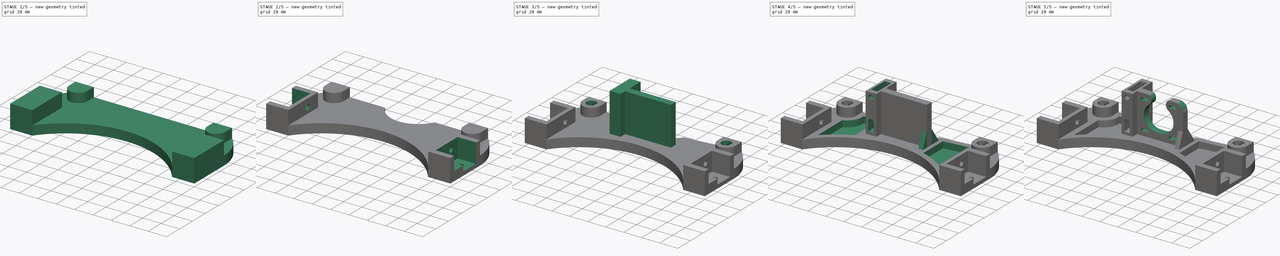
[diagram: build sequence overview — one tinted view per stage of 5, left to right]
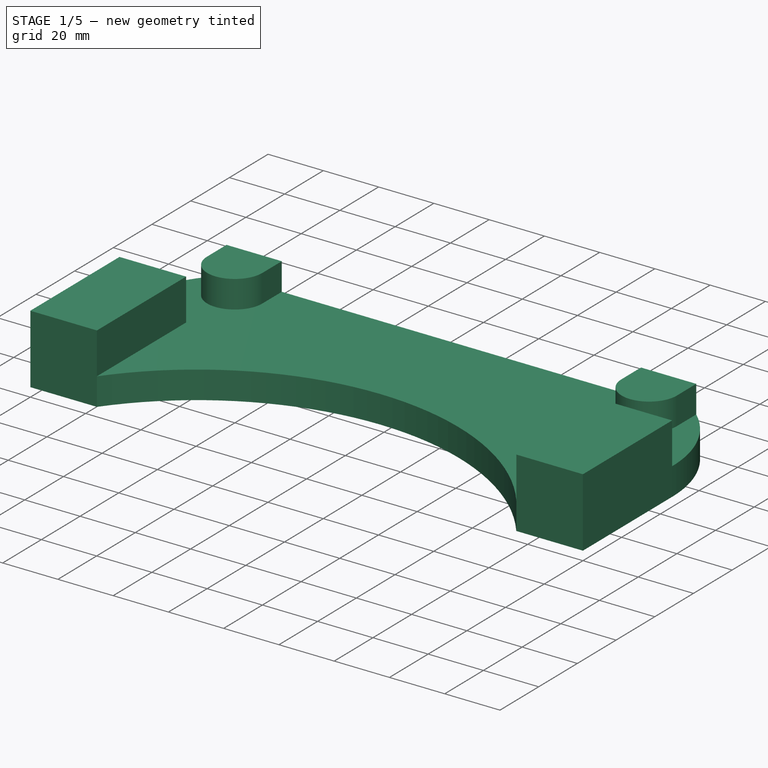
[diagram: stage 1 of 5 — iso view after this stage's code; geometry added in this stage tinted green]
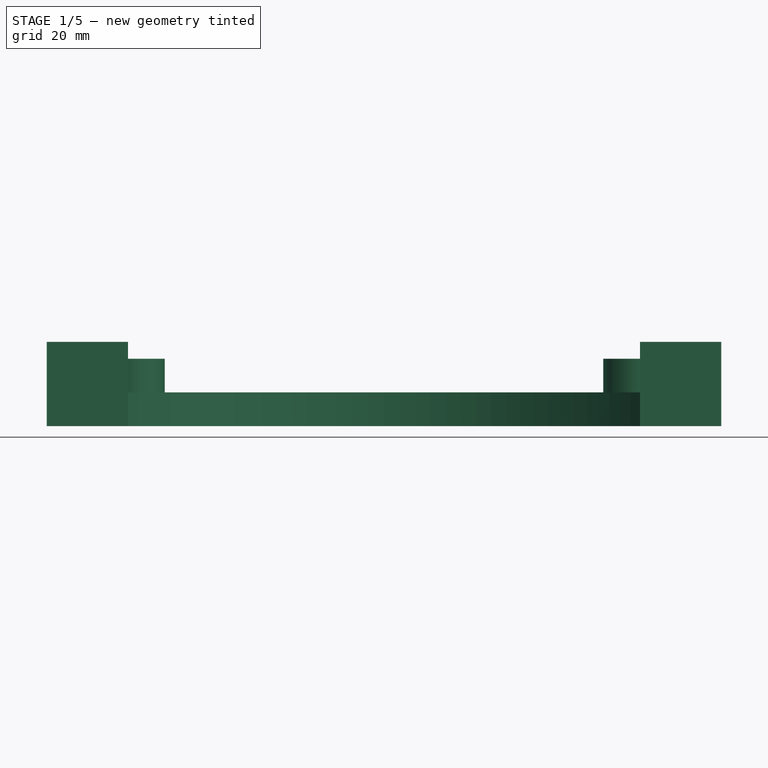
[diagram: stage 1 of 5 — front view after this stage's code; geometry added in this stage tinted green]
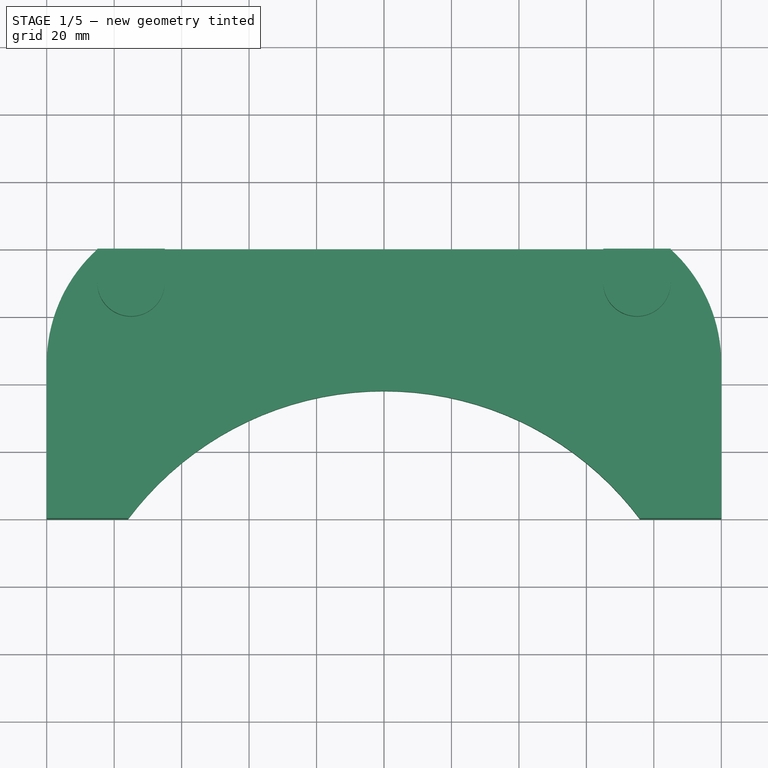
[diagram: stage 1 of 5 — top view after this stage's code; geometry added in this stage tinted green]
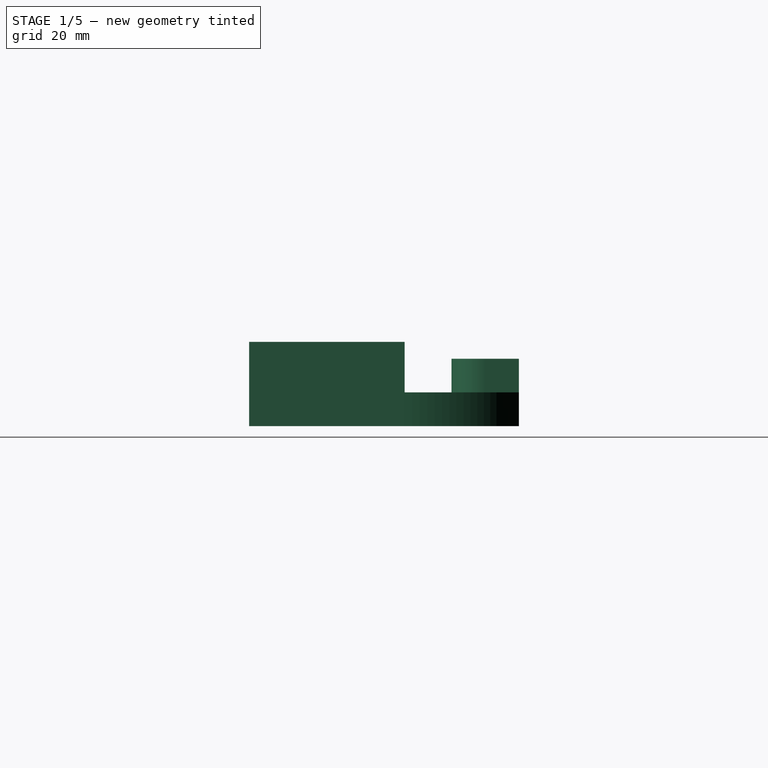
[diagram: stage 1 of 5 — right view after this stage's code; geometry added in this stage tinted green]
FCSTD DOCUMENT
Label: Y_Motor
objects: Sketcher::SketchObject×22, PartDesign::Pocket×19, PartDesign::Mirrored×7, PartDesign::Pad×3, PartDesign::LinearPattern×1, PartDesign::MultiTransform×1, PartDesign::Fillet×1, Part::Feature×1
note: 77 computed .brp shape members not serialized (recipe doc carries the construction recipe); baked Part::Feature solids carry a one-line shape summary decoded from their .brp

FEATURE [Sketcher::SketchObject] Sketch
  sketch-geometry (5):
    g0: LineSegment StartX=-100 StartY=0 StartZ=0 EndX=100 EndY=0 EndZ=0
    g1: LineSegment StartX=100 StartY=0 StartZ=0 EndX=100 EndY=80 EndZ=0
    g2: LineSegment StartX=100 StartY=80 StartZ=0 EndX=-100 EndY=80 EndZ=0
    g3: LineSegment StartX=-100 StartY=80 StartZ=0 EndX=-100 EndY=0 EndZ=0
    g4: GeomPoint [constr] X=0 Y=0 Z=0
  constraints (12):
    c: Coincident(g0,g1)
    c: Coincident(g1,g2)
    c: Coincident(g2,g3)
    c: Coincident(g3,g0)
    c: Horizontal(g0)
    c: Horizontal(g2)
    c: Vertical(g1)
    c: Vertical(g3)
    c: DistanceX(g0) = 200
    c: DistanceY(g1) = 80
    c: Symmetric(g0,g0,g4)
    c: Coincident(g4,g-1)
FEATURE [PartDesign::Pad] Pad
  Length = 25
  Length2 = 100
  Sketch = -> Sketch
  Type = 0
FEATURE [Sketcher::SketchObject] Sketch001
  ExternalGeometry = -> [Pad]
  Placement = pos=(0,0,25) rot=(0,0,1;0rad)
  Support = -> Pad [Face6]
  sketch-geometry (3):
    g0: ArcOfCircle CenterX=0 CenterY=-56.8001 CenterZ=0 NormalX=0 NormalY=0 NormalZ=1 Radius=94.8001 StartAngle=0.642447 EndAngle=2.49915
    g1: LineSegment StartX=-75.9 StartY=0 StartZ=0 EndX=75.9 EndY=0 EndZ=0
    g2: LineSegment [constr] StartX=0 StartY=38 StartZ=0 EndX=0 EndY=0 EndZ=0
  constraints (10):
    c: PointOnObject(g0,g-2)
    c: Coincident(g1,g0)
    c: Coincident(g1,g0)
    c: Horizontal(g1)
    c: PointOnObject(g0,g-3)
    c: PointOnObject(g2,g0)
    c: Coincident(g2,g-1)
    c: Vertical(g2)
    c: DistanceY(g2) = -38
    c: DistanceX(g0,g-3) = -24.1
FEATURE [PartDesign::Pocket] Pocket
  Length = 5
  Sketch = -> Sketch001
  Type = 1
FEATURE [Sketcher::SketchObject] Sketch002
  ExternalGeometry = -> [Pocket]
  Placement = pos=(0,0,25) rot=(0,0,1;0rad)
  Support = -> Pocket [Face5]
  sketch-geometry (3):
    g0: ArcOfCircle CenterX=54.1931 CenterY=46.1 CenterZ=0 NormalX=0 NormalY=0 NormalZ=1 Radius=45.8069 StartAngle=6.28318 EndAngle=7.11635
    g1: LineSegment StartX=85 StartY=80 StartZ=0 EndX=100 EndY=80 EndZ=0
    g2: LineSegment StartX=100 StartY=80 StartZ=0 EndX=100 EndY=46.1 EndZ=0
  constraints (9):
    c: Coincident(g0,g1)
    c: Coincident(g1,g2)
    c: Coincident(g2,g0)
    c: Vertical(g2)
    c: Tangent(g2,g0)
    c: Horizontal(g1)
    c: DistanceX(g1) = 15
    c: Coincident(g1,g-3)
    c: DistanceY(g0,g-3) = -46.1
FEATURE [PartDesign::Pocket] Pocket001
  Length = 25
  Sketch = -> Sketch002
  Type = 0
FEATURE [PartDesign::Mirrored] Mirrored
  Originals = -> [Pocket001]
  StdMirrorPlane = YZ
FEATURE [Sketcher::SketchObject] Sketch004
  ExternalGeometry = -> [Mirrored]
  Placement = pos=(0,0,25) rot=(0,0,1;0rad)
  Support = -> Mirrored [Face4]
  sketch-geometry (16):
    g0: LineSegment StartX=-101 StartY=81 StartZ=0 EndX=-85 EndY=81 EndZ=0
    g1: LineSegment StartX=101 StartY=81 StartZ=0 EndX=101 EndY=46.1 EndZ=0
    g2: LineSegment StartX=75.9 StartY=0 StartZ=0 EndX=-75.9 EndY=0 EndZ=0
    g3: LineSegment StartX=-101 StartY=46.1 StartZ=0 EndX=-101 EndY=81 EndZ=0
    g4: LineSegment StartX=-101 StartY=46.1 StartZ=0 EndX=-75.9 EndY=46.1 EndZ=0
    g5: LineSegment StartX=-75.9 StartY=46.1 StartZ=0 EndX=-75.9 EndY=0 EndZ=0
    g6: LineSegment StartX=101 StartY=46.1 StartZ=0 EndX=75.9 EndY=46.1 EndZ=0
    g7: LineSegment StartX=75.9 StartY=46.1 StartZ=0 EndX=75.9 EndY=0 EndZ=0
    g8: LineSegment StartX=-85 StartY=81 StartZ=0 EndX=-85 EndY=70 EndZ=0
    g9: ArcOfCircle CenterX=-75 CenterY=70 CenterZ=0 NormalX=0 NormalY=0 NormalZ=1 Radius=10 StartAngle=3.14159 EndAngle=6.28319
    g10: LineSegment StartX=-65 StartY=70 StartZ=0 EndX=-65 EndY=81 EndZ=0
    g11: LineSegment StartX=65 StartY=81 StartZ=0 EndX=65 EndY=70 EndZ=0
    g12: ArcOfCircle CenterX=75 CenterY=70 CenterZ=0 NormalX=0 NormalY=0 NormalZ=1 Radius=10 StartAngle=3.14159 EndAngle=6.28319
    g13: LineSegment StartX=85 StartY=70 StartZ=0 EndX=85 EndY=81 EndZ=0
    g14: LineSegment StartX=85 StartY=81 StartZ=0 EndX=101 EndY=81 EndZ=0
    g15: LineSegment StartX=-65 StartY=81 StartZ=0 EndX=65 EndY=81 EndZ=0
  constraints (43):
    c: Coincident(g14,g1)
    c: Coincident(g3,g0)
    c: Horizontal(g0)
    c: Horizontal(g2)
    c: Vertical(g1)
    c: Vertical(g3)
    c: Coincident(g4,g5)
    c: Horizontal(g4)
    c: Vertical(g5)
    c: Coincident(g6,g7)
    c: Horizontal(g6)
    c: Vertical(g7)
    c: Coincident(g2,g5)
    c: Coincident(g3,g4)
    c: Coincident(g1,g6)
    c: Coincident(g2,g7)
    c: Equal(g5,g7)
    c: Symmetric(g2,g2,g-2)
    c: Equal(g4,g6)
    c: Vertical(g8)
    c: Tangent(g8,g9)
    c: Tangent(g9,g10)
    c: Vertical(g10)
    c: Vertical(g11)
    c: Tangent(g11,g12)
    c: Tangent(g12,g13)
    c: Vertical(g13)
    c: Coincident(g15,g11)
    c: Coincident(g14,g13)
    c: Tangent(g0,g14)
    c: Coincident(g0,g8)
    c: Coincident(g15,g10)
    c: Tangent(g0,g15)
    c: Equal(g0,g14)
    c: Equal(g11,g10)
    c: Equal(g12,g9)
    c: DistanceY(g-4,g8) = -10
    c: DistanceY(g5) = -46.1
    c: Radius(g9) = 10
    c: Coincident(g2,g-3)
    c: PointOnObject(g-4,g8)
    c: DistanceX(g3,g-3) = 1
    c: DistanceY(g0,g-4) = -1
FEATURE [PartDesign::Pocket] Pocket002
  Length = 15
  Sketch = -> Sketch004
  Type = 0
FEATURE [Sketcher::SketchObject] Sketch006
  ExternalGeometry = -> [Pocket002]
  Placement = pos=(0,0,25) rot=(0,0,1;0rad)
  Support = -> Pocket002 [Face17]
  sketch-geometry (4):
    g0: LineSegment StartX=-86 StartY=81 StartZ=0 EndX=86 EndY=81 EndZ=0
    g1: LineSegment StartX=86 StartY=81 StartZ=0 EndX=86 EndY=59 EndZ=0
    g2: LineSegment StartX=86 StartY=59 StartZ=0 EndX=-86 EndY=59 EndZ=0
    g3: LineSegment StartX=-86 StartY=59 StartZ=0 EndX=-86 EndY=81 EndZ=0
  constraints (12):
    c: Coincident(g0,g1)
    c: Coincident(g1,g2)
    c: Coincident(g2,g3)
    c: Coincident(g3,g0)
    c: Horizontal(g0)
    c: Horizontal(g2)
    c: Vertical(g1)
    c: Vertical(g3)
    c: Symmetric(g0,g0,g-2)
    c: DistanceY(g0,g-3) = -1
    c: DistanceX(g0,g-3) = 1
    c: DistanceY(g1) = -22
FEATURE [PartDesign::Pocket] Pocket003
  Length = 5
  Sketch = -> Sketch006
  Type = 0
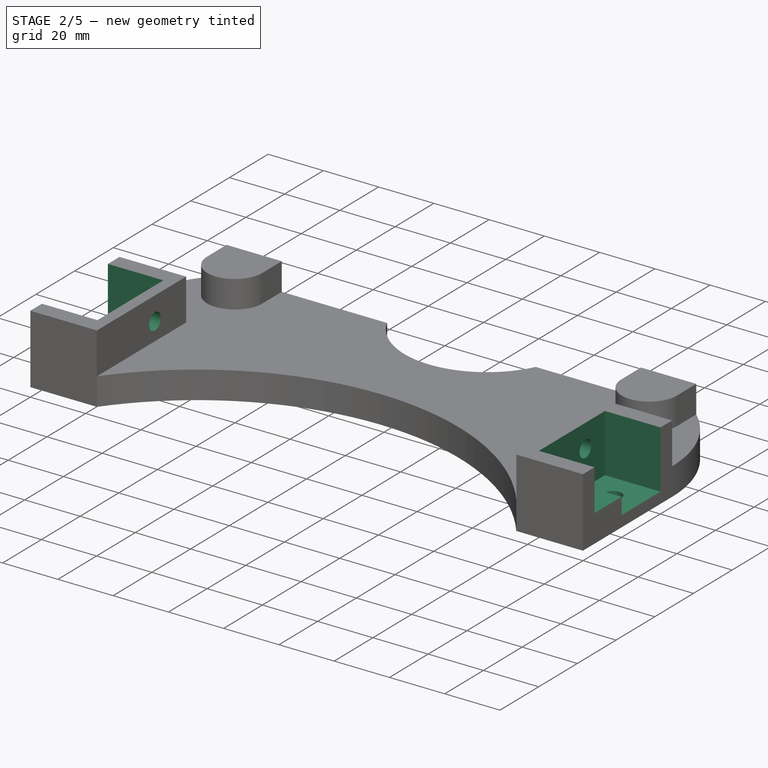
[diagram: stage 2 of 5 — iso view after this stage's code; geometry added in this stage tinted green]
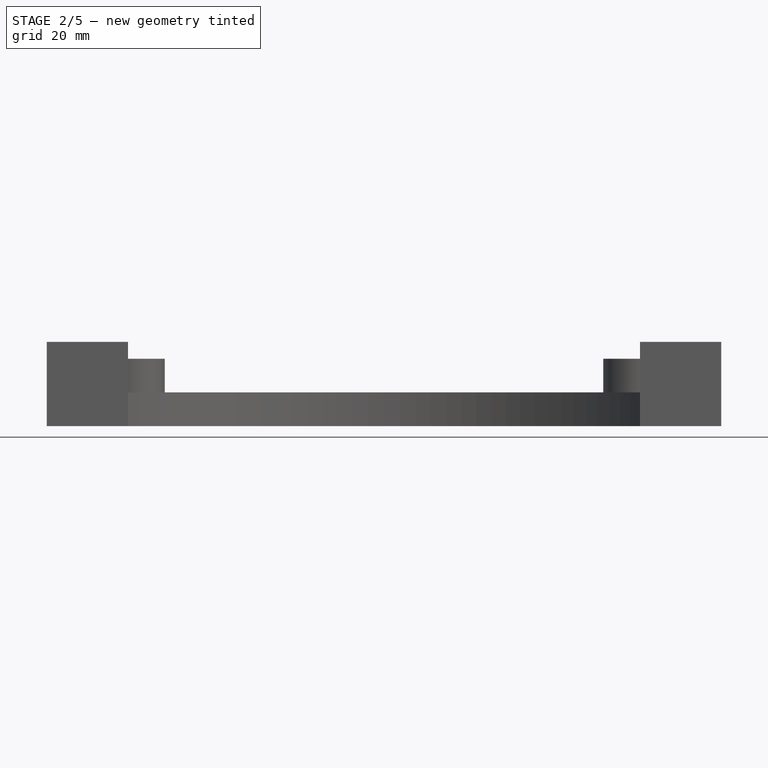
[diagram: stage 2 of 5 — front view after this stage's code; geometry added in this stage tinted green]
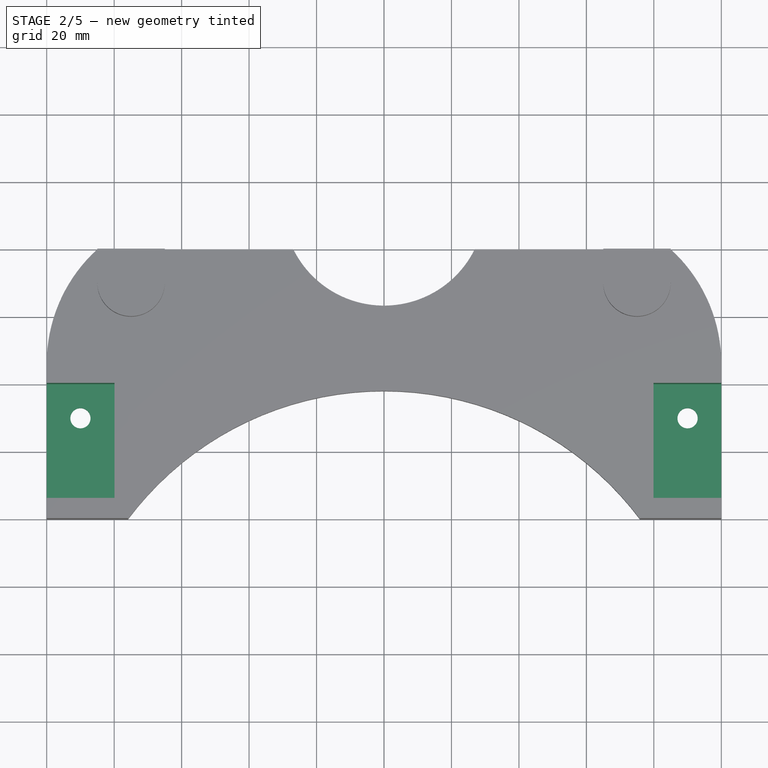
[diagram: stage 2 of 5 — top view after this stage's code; geometry added in this stage tinted green]
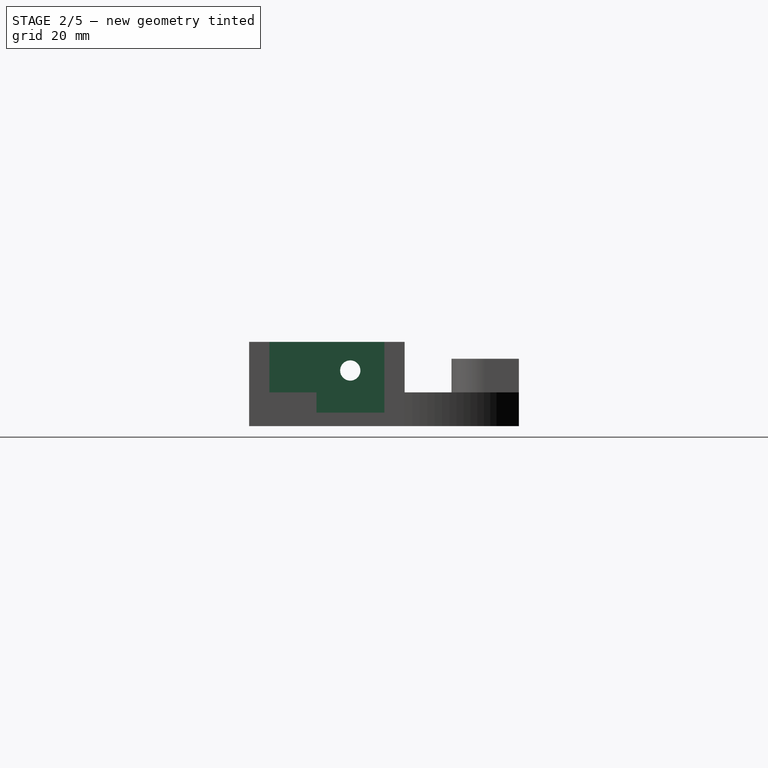
[diagram: stage 2 of 5 — right view after this stage's code; geometry added in this stage tinted green]
FEATURE [Sketcher::SketchObject] Sketch003
  ExternalGeometry = -> [Pocket003]
  Placement = pos=(0,0,10) rot=(0,0,1;0rad)
  Support = -> Pocket003 [Face13]
  sketch-geometry (1):
    g0: Circle CenterX=0 CenterY=93.29 CenterZ=0 NormalX=0 NormalY=0 NormalZ=1 Radius=30
  constraints (3):
    c: PointOnObject(g0,g-2)
    c: Radius(g0) = 30
    c: DistanceY(g-3,g0) = 13.29
FEATURE [PartDesign::Pocket] Pocket004
  Length = 5
  Sketch = -> Sketch003
  Type = 1
FEATURE [Sketcher::SketchObject] Sketch005
  ExternalGeometry = -> [Pocket004]
  Placement = pos=(100,0,0) rot=(0.57735,0.57735,0.57735;2.0944rad)
  Support = -> Pocket004 [Face4]
  sketch-geometry (6):
    g0: LineSegment StartX=6 StartY=26 StartZ=0 EndX=40.1 EndY=26 EndZ=0
    g1: LineSegment StartX=40.1 StartY=26 StartZ=0 EndX=40.1 EndY=4 EndZ=0
    g2: LineSegment StartX=40.1 StartY=4 StartZ=0 EndX=20 EndY=4 EndZ=0
    g3: LineSegment StartX=6 StartY=10 StartZ=0 EndX=6 EndY=26 EndZ=0
    g4: LineSegment StartX=6 StartY=10 StartZ=0 EndX=20 EndY=10 EndZ=0
    g5: LineSegment StartX=20 StartY=10 StartZ=0 EndX=20 EndY=4 EndZ=0
  constraints (18):
    c: Coincident(g0,g1)
    c: Coincident(g1,g2)
    c: Coincident(g3,g0)
    c: Horizontal(g0)
    c: Horizontal(g2)
    c: Vertical(g1)
    c: Vertical(g3)
    c: Horizontal(g4)
    c: Coincident(g4,g5)
    c: Vertical(g5)
    c: Coincident(g5,g2)
    c: Coincident(g4,g3)
    c: DistanceX(g2) = -20.1
    c: DistanceY(g5) = -6
    c: DistanceY(g1,g-4) = -4
    c: DistanceX(g0,g-3) = 6
    c: DistanceX(g0) = 34.1
    c: DistanceY(g0,g-3) = -1
FEATURE [PartDesign::Pocket] Pocket005
  Length = 20.1
  Sketch = -> Sketch005
  Type = 0
FEATURE [PartDesign::Mirrored] Mirrored001
  Originals = -> [Pocket005]
  StdMirrorPlane = YZ
FEATURE [Sketcher::SketchObject] Sketch008
  ExternalGeometry = -> [Mirrored001]
  Placement = pos=(0,0,4) rot=(0,0,1;0rad)
  Support = -> Mirrored001 [Face17]
  sketch-geometry (1):
    g0: Circle CenterX=90 CenterY=30 CenterZ=0 NormalX=0 NormalY=0 NormalZ=1 Radius=3
  constraints (3):
    c: Radius(g0) = 3
    c: DistanceY(g-3,g0) = -10.1
    c: DistanceX(g-3,g0) = -10
FEATURE [PartDesign::Pocket] Pocket006
  Length = 5
  Sketch = -> Sketch008
  Type = 1
FEATURE [PartDesign::Mirrored] Mirrored002
  Originals = -> [Pocket006]
  StdMirrorPlane = YZ
FEATURE [Sketcher::SketchObject] Sketch009
  ExternalGeometry = -> [Mirrored002]
  Placement = pos=(79.9,0,0) rot=(0.57735,0.57735,0.57735;2.0944rad)
  Support = -> Mirrored002 [Face23]
  sketch-geometry (1):
    g0: Circle CenterX=30 CenterY=16.5 CenterZ=0 NormalX=0 NormalY=0 NormalZ=1 Radius=3
  constraints (3):
    c: Radius(g0) = 3
    c: DistanceX(g-3,g0) = -10.1
    c: DistanceY(g0,g-3) = -12.5
FEATURE [PartDesign::Pocket] Pocket007
  Length = 5
  Sketch = -> Sketch009
  Type = 1
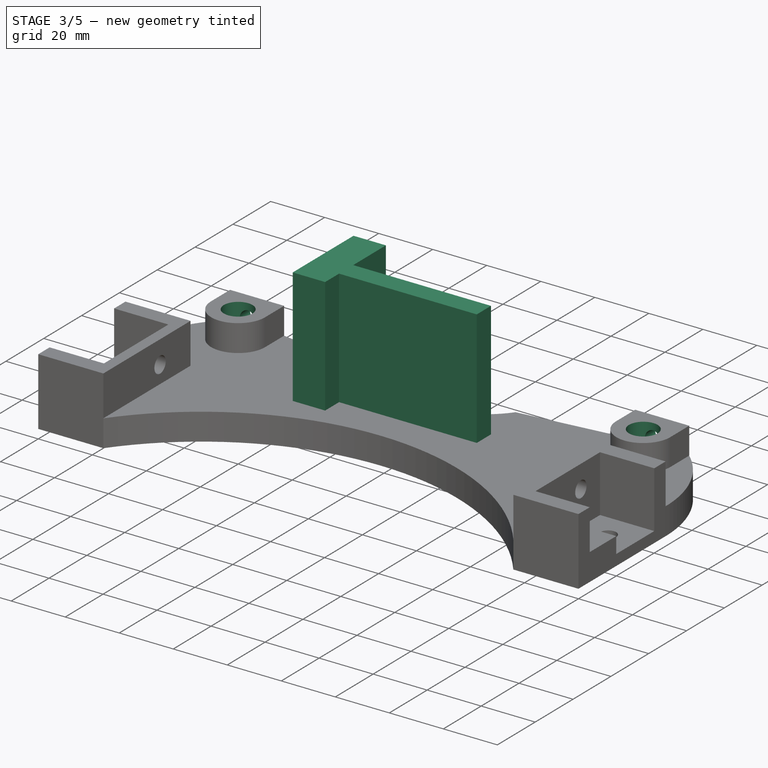
[diagram: stage 3 of 5 — iso view after this stage's code; geometry added in this stage tinted green]
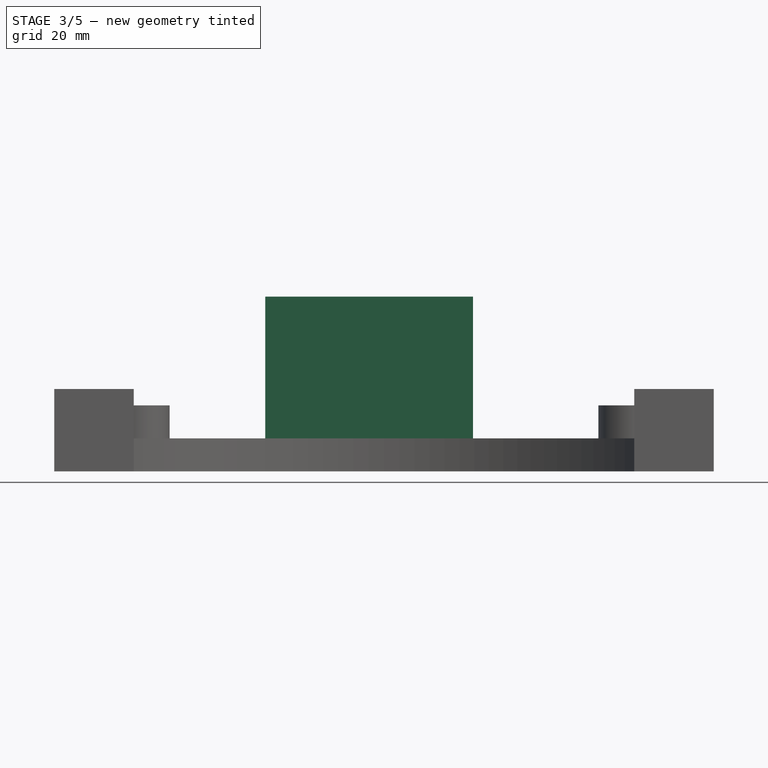
[diagram: stage 3 of 5 — front view after this stage's code; geometry added in this stage tinted green]
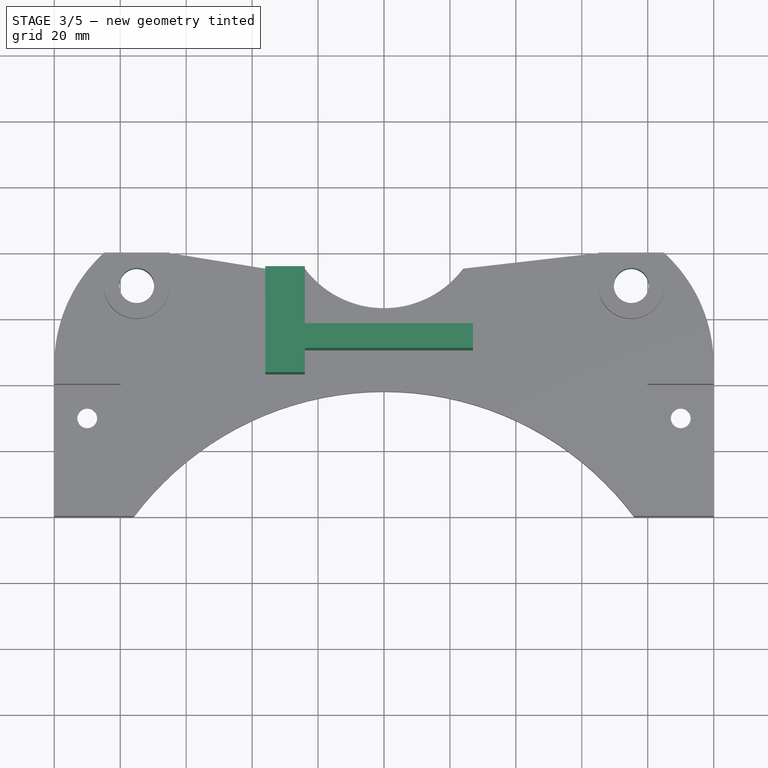
[diagram: stage 3 of 5 — top view after this stage's code; geometry added in this stage tinted green]
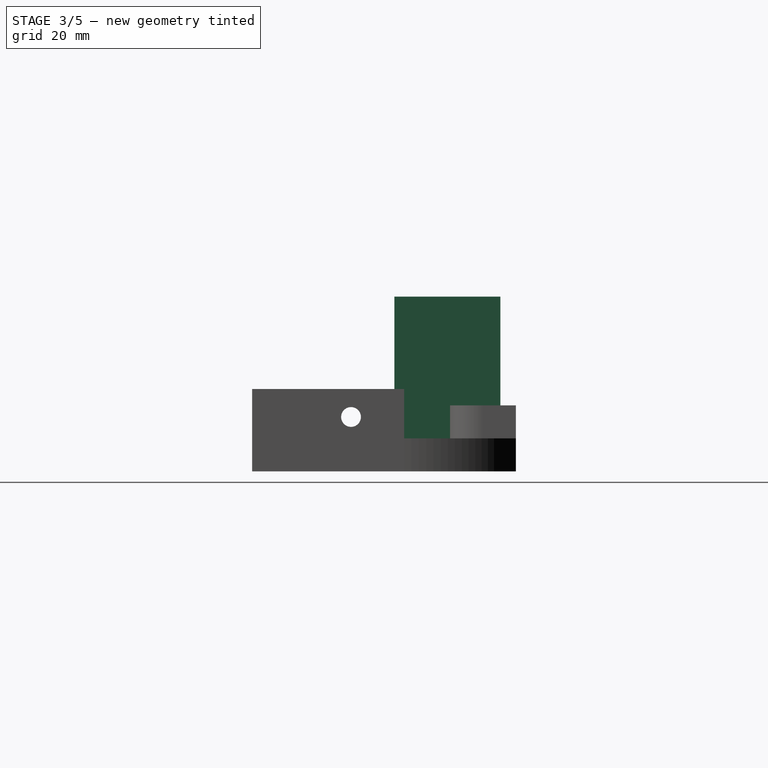
[diagram: stage 3 of 5 — right view after this stage's code; geometry added in this stage tinted green]
FEATURE [Sketcher::SketchObject] Sketch010
  ExternalGeometry = -> [Pocket007]
  Placement = pos=(0,0,20) rot=(0,0,1;0rad)
  Support = -> Pocket007 [Face30]
  sketch-geometry (1):
    g0: Circle CenterX=75 CenterY=70 CenterZ=0 NormalX=0 NormalY=0 NormalZ=1 Radius=5.3
  constraints (2):
    c: Radius(g0) = 5.3
    c: Coincident(g-3,g0)
FEATURE [PartDesign::Pocket] Pocket008
  Length = 5
  Sketch = -> Sketch010
  Type = 1
FEATURE [PartDesign::Mirrored] Mirrored003
  Originals = -> [Pocket008]
  StdMirrorPlane = YZ
FEATURE [Sketcher::SketchObject] Sketch011
  ExternalGeometry = -> [Mirrored003]
  Placement = pos=(0,80,0) rot=(0,0.707107,0.707107;3.14159rad)
  Support = -> Mirrored003 [Face14]
  sketch-geometry (2):
    g0: Circle CenterX=-75 CenterY=15 CenterZ=0 NormalX=0 NormalY=0 NormalZ=1 Radius=2.6
    g1: LineSegment [constr] StartX=-75 StartY=15 StartZ=0 EndX=-75 EndY=20 EndZ=0
  constraints (5):
    c: Radius(g0) = 2.6
    c: Coincident(g1,g0)
    c: Vertical(g1)
    c: Symmetric(g-3,g-3,g1)
    c: DistanceY(g1) = 5
FEATURE [PartDesign::Pocket] Pocket009
  Length = 7
  Sketch = -> Sketch011
  Type = 0
FEATURE [PartDesign::Mirrored] Mirrored004
  Originals = -> [Pocket009]
  StdMirrorPlane = YZ
FEATURE [Sketcher::SketchObject] Sketch017
  ExternalGeometry = -> [Mirrored004]
  Placement = pos=(0,0,10) rot=(0,0,1;0rad)
  Support = -> Mirrored004 [Face18]
  sketch-geometry (7):
    g0: LineSegment StartX=65 StartY=80 StartZ=0 EndX=24 EndY=75.29 EndZ=0
    g1: LineSegment StartX=24 StartY=75.29 StartZ=0 EndX=-24 EndY=75.29 EndZ=0
    g2: LineSegment StartX=-24 StartY=75.29 StartZ=0 EndX=-36 EndY=75.29 EndZ=0
    g3: LineSegment StartX=-36 StartY=75.29 StartZ=0 EndX=-65 EndY=80 EndZ=0
    g4: LineSegment StartX=-65 StartY=80 StartZ=0 EndX=-65 EndY=81 EndZ=0
    g5: LineSegment StartX=-65 StartY=81 StartZ=0 EndX=65 EndY=81 EndZ=0
    g6: LineSegment StartX=65 StartY=81 StartZ=0 EndX=65 EndY=80 EndZ=0
  constraints (19):
    c: Coincident(g-5,g0)
    c: PointOnObject(g0,g-3)
    c: Coincident(g0,g1)
    c: PointOnObject(g1,g-3)
    c: Horizontal(g1)
    c: Coincident(g1,g2)
    c: Horizontal(g2)
    c: Coincident(g2,g3)
    c: Coincident(g3,g-4)
    c: Coincident(g3,g4)
    c: Vertical(g4)
    c: Coincident(g4,g5)
    c: Horizontal(g5)
    c: Coincident(g5,g6)
    c: Coincident(g6,g0)
    c: Vertical(g6)
    c: DistanceX(g1) = -48
    c: DistanceX(g2) = -12
    c: DistanceY(g4) = 1
FEATURE [PartDesign::Pocket] Pocket010
  Length = 5
  Sketch = -> Sketch017
  Type = 1
FEATURE [Sketcher::SketchObject] Sketch016
  ExternalGeometry = -> [Pocket010]
  Placement = pos=(0,0,10) rot=(0,0,1;0rad)
  Support = -> Pocket010 [Face21]
  sketch-geometry (8):
    g0: LineSegment StartX=-36 StartY=75.29 StartZ=0 EndX=-24 EndY=75.29 EndZ=0
    g1: LineSegment StartX=-24 StartY=75.29 StartZ=0 EndX=-24 EndY=58 EndZ=0
    g2: LineSegment StartX=-24 StartY=43.152 StartZ=0 EndX=-36 EndY=43.152 EndZ=0
    g3: LineSegment StartX=-36 StartY=43.152 StartZ=0 EndX=-36 EndY=75.29 EndZ=0
    g4: LineSegment StartX=-24 StartY=58 StartZ=0 EndX=27 EndY=58 EndZ=0
    g5: LineSegment StartX=27 StartY=58 StartZ=0 EndX=27 EndY=50.5 EndZ=0
    g6: LineSegment StartX=27 StartY=50.5 StartZ=0 EndX=-24 EndY=50.5 EndZ=0
    g7: LineSegment StartX=-24 StartY=50.5 StartZ=0 EndX=-24 EndY=43.152 EndZ=0
  constraints (21):
    c: Coincident(g0,g1)
    c: Coincident(g7,g2)
    c: Coincident(g2,g3)
    c: Coincident(g3,g0)
    c: Horizontal(g2)
    c: Vertical(g1)
    c: Vertical(g3)
    c: Coincident(g4,g5)
    c: Coincident(g5,g6)
    c: Horizontal(g4)
    c: Horizontal(g6)
    c: Vertical(g5)
    c: Coincident(g1,g4)
    c: Coincident(g7,g6)
    c: Tangent(g1,g7)
    c: DistanceY(g5) = -7.5
    c: DistanceY(g7) = -7.348
    c: Coincident(g0,g-4)
    c: Coincident(g0,g-3)
    c: DistanceY(g4,g-5) = 22
    c: DistanceX(g2,g5) = 51
FEATURE [PartDesign::Pad] Pad001
  Length = 43
  Length2 = 100
  Sketch = -> Sketch016
  Type = 0
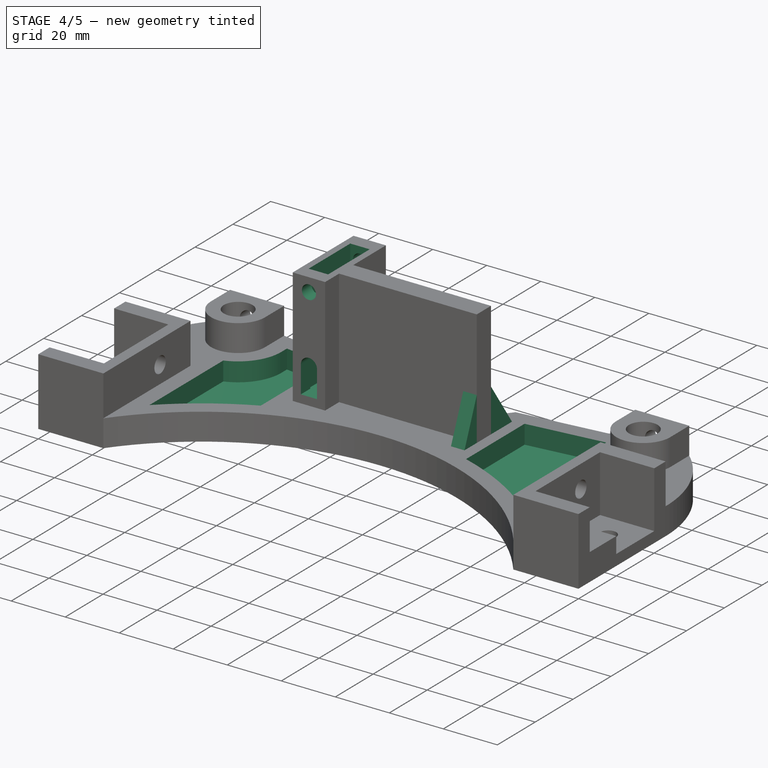
[diagram: stage 4 of 5 — iso view after this stage's code; geometry added in this stage tinted green]
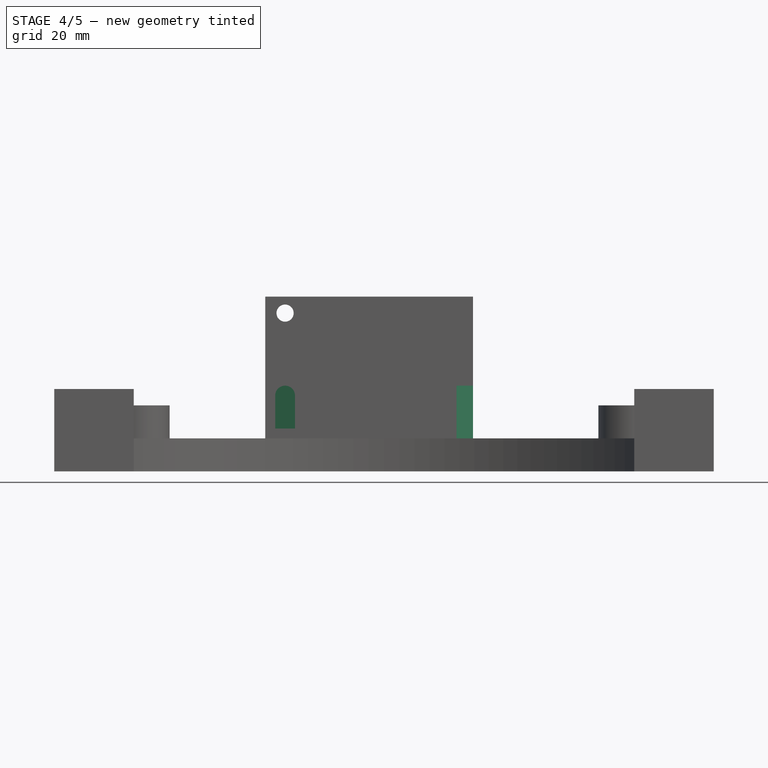
[diagram: stage 4 of 5 — front view after this stage's code; geometry added in this stage tinted green]
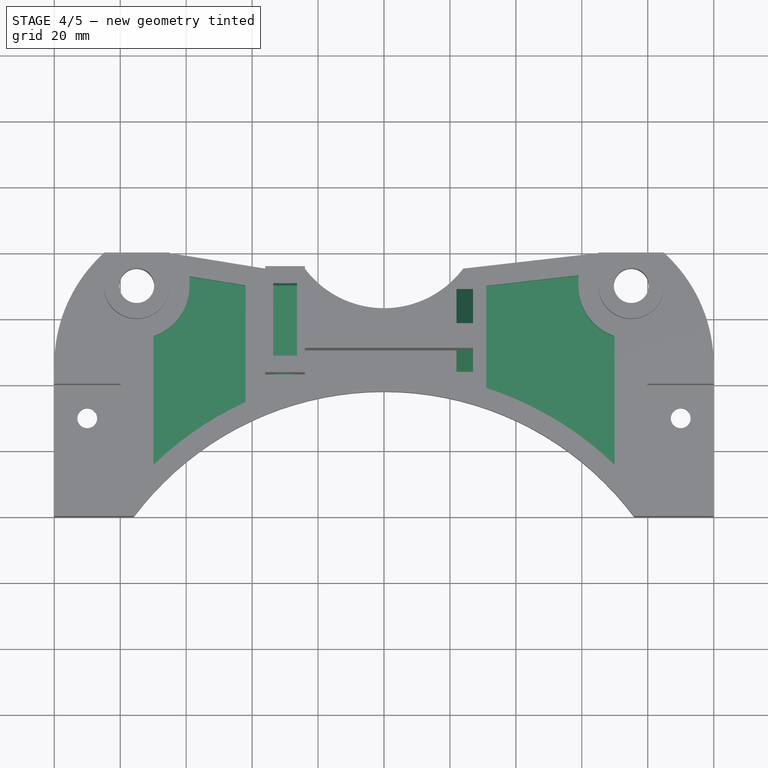
[diagram: stage 4 of 5 — top view after this stage's code; geometry added in this stage tinted green]
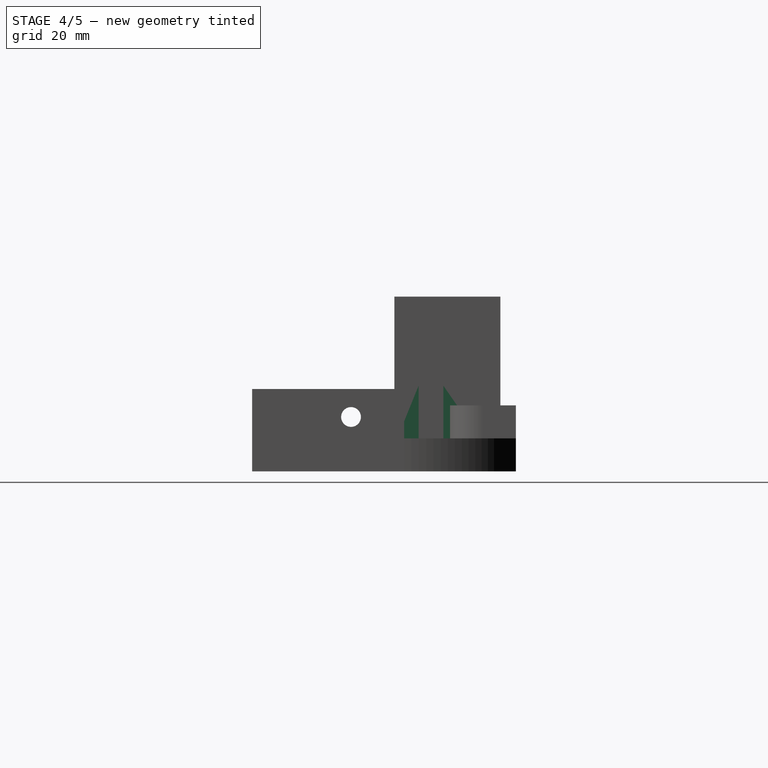
[diagram: stage 4 of 5 — right view after this stage's code; geometry added in this stage tinted green]
FEATURE [Sketcher::SketchObject] Sketch018
  ExternalGeometry = -> [Pad001]
  Placement = pos=(27,0,0) rot=(0.57735,0.57735,0.57735;2.0944rad)
  Support = -> Pad001 [Face52]
  sketch-geometry (4):
    g0: LineSegment StartX=44 StartY=10 StartZ=0 EndX=69.1 EndY=10 EndZ=0
    g1: LineSegment StartX=69.1 StartY=10 StartZ=0 EndX=58 EndY=26 EndZ=0
    g2: LineSegment StartX=58 StartY=26 StartZ=0 EndX=50.5 EndY=26 EndZ=0
    g3: LineSegment StartX=50.5 StartY=26 StartZ=0 EndX=44 EndY=10 EndZ=0
  constraints (12):
    c: Coincident(g0,g1)
    c: Coincident(g1,g2)
    c: Coincident(g2,g3)
    c: Coincident(g3,g0)
    c: Horizontal(g0)
    c: Horizontal(g2)
    c: PointOnObject(g-3,g0)
    c: PointOnObject(g2,g-3)
    c: PointOnObject(g1,g-4)
    c: DistanceX(g0,g-3) = 6.5
    c: DistanceX(g-4,g0) = 11.1
    c: DistanceY(g3) = -16
FEATURE [PartDesign::Pad] Pad002
  Length = 5
  Length2 = 100
  Reversed = true
  Sketch = -> Sketch018
  Type = 0
FEATURE [Sketcher::SketchObject] Sketch019
  ExternalGeometry = -> [Pad002]
  Placement = pos=(0,0,53) rot=(0,0,1;0rad)
  Support = -> Pad002 [Face62]
  sketch-geometry (5):
    g0: LineSegment StartX=-33.6 StartY=70.152 StartZ=0 EndX=-26.4 EndY=70.152 EndZ=0
    g1: LineSegment StartX=-26.4 StartY=70.152 StartZ=0 EndX=-26.4 EndY=48.152 EndZ=0
    g2: LineSegment StartX=-26.4 StartY=48.152 StartZ=0 EndX=-33.6 EndY=48.152 EndZ=0
    g3: LineSegment StartX=-33.6 StartY=48.152 StartZ=0 EndX=-33.6 EndY=70.152 EndZ=0
    g4: LineSegment [constr] StartX=-30 StartY=70.152 StartZ=0 EndX=-30 EndY=75.29 EndZ=0
  constraints (14):
    c: Coincident(g0,g1)
    c: Coincident(g1,g2)
    c: Coincident(g2,g3)
    c: Coincident(g3,g0)
    c: Horizontal(g0)
    c: Horizontal(g2)
    c: Vertical(g1)
    c: Vertical(g3)
    c: DistanceX(g2) = -7.2
    c: DistanceY(g3) = 22
    c: Symmetric(g-4,g-4,g4)
    c: Symmetric(g0,g0,g4)
    c: Vertical(g4)
    c: DistanceY(g4) = 5.138
FEATURE [PartDesign::Pocket] Pocket011
  Length = 40
  Sketch = -> Sketch019
  Type = 0
FEATURE [Sketcher::SketchObject] Sketch020
  ExternalGeometry = -> [Pocket011]
  Placement = pos=(0,43.152,0) rot=(1,0,0;1.5708rad)
  Support = -> Pocket011 [Face49]
  sketch-geometry (5):
    g0: LineSegment StartX=-33 StartY=23 StartZ=0 EndX=-33 EndY=13 EndZ=0
    g1: LineSegment StartX=-33 StartY=13 StartZ=0 EndX=-27 EndY=13 EndZ=0
    g2: LineSegment StartX=-27 StartY=13 StartZ=0 EndX=-27 EndY=23 EndZ=0
    g3: ArcOfCircle CenterX=-30 CenterY=23 CenterZ=0 NormalX=0 NormalY=0 NormalZ=1 Radius=3 StartAngle=0 EndAngle=3.14159
    g4: LineSegment [constr] StartX=-30 StartY=13 StartZ=0 EndX=-30 EndY=10 EndZ=0
  constraints (14):
    c: Vertical(g0)
    c: Coincident(g0,g1)
    c: Horizontal(g1)
    c: Coincident(g1,g2)
    c: Vertical(g2)
    c: Tangent(g2,g3)
    c: Coincident(g3,g0)
    c: Tangent(g0,g3)
    c: DistanceY(g0) = -10
    c: DistanceX(g1) = 6
    c: Vertical(g4)
    c: Symmetric(g1,g1,g4)
    c: Symmetric(g-3,g-3,g4)
    c: DistanceY(g1,g-3) = -3
FEATURE [PartDesign::Pocket] Pocket012
  Length = 5.07
  Sketch = -> Sketch020
  Type = 0
FEATURE [Sketcher::SketchObject] Sketch021
  ExternalGeometry = -> [Pocket012]
  Placement = pos=(0,43.152,0) rot=(1,0,0;1.5708rad)
  Support = -> Pocket012 [Face49]
  sketch-geometry (2):
    g0: Circle CenterX=-30 CenterY=48 CenterZ=0 NormalX=0 NormalY=0 NormalZ=1 Radius=2.6
    g1: LineSegment [constr] StartX=-30 StartY=48 StartZ=0 EndX=-30 EndY=23 EndZ=0
  constraints (5):
    c: DistanceY(g-3,g0) = -5
    c: Radius(g0) = 2.6
    c: Coincident(g1,g0)
    c: Vertical(g1)
    c: Coincident(g-4,g1)
FEATURE [PartDesign::Pocket] Pocket013
  Length = 5
  Sketch = -> Sketch021
  Type = 1
FEATURE [Sketcher::SketchObject] Sketch015
  ExternalGeometry = -> [Pocket013]
  Placement = pos=(0,0,10) rot=(0,0,1;0rad)
  Support = -> Pocket013 [Face21]
  sketch-geometry (7):
    g0: LineSegment StartX=31 StartY=39.1148 StartZ=0 EndX=31 EndY=70.0547 EndZ=0
    g1: LineSegment StartX=31 StartY=70.0547 StartZ=0 EndX=59 EndY=73.2713 EndZ=0
    g2: LineSegment StartX=59 StartY=73.2713 StartZ=0 EndX=59 EndY=70 EndZ=0
    g3: ArcOfCircle CenterX=75 CenterY=70 CenterZ=0 NormalX=0 NormalY=0 NormalZ=1 Radius=16 StartAngle=3.14159 EndAngle=4.38798
    g4: LineSegment StartX=69.9 StartY=54.8346 StartZ=0 EndX=69.9 EndY=15.8267 EndZ=0
    g5: ArcOfCircle CenterX=0 CenterY=-56.8001 CenterZ=0 NormalX=0 NormalY=0 NormalZ=1 Radius=100.8 StartAngle=0.804528 EndAngle=1.25819
    g6: LineSegment [constr] StartX=31 StartY=39.1148 StartZ=0 EndX=29.1548 EndY=33.4055 EndZ=0
  constraints (21):
    c: Vertical(g0)
    c: Vertical(g4)
    c: Vertical(g2)
    c: Coincident(g3,g4)
    c: Coincident(g3,g2)
    c: Coincident(g2,g1)
    c: Tangent(g3,g2)
    c: Coincident(g5,g4)
    c: Coincident(g5,g0)
    c: Coincident(g1,g0)
    c: Coincident(g6,g0)
    c: Perpendicular(g6,g5)
    c: Distance(g6) = 6
    c: Parallel(g1,g-3)
    c: Coincident(g3,g-4)
    c: DistanceX(g1,g-3) = 6
    c: DistanceX(g3,g-5) = 6
    c: Coincident(g-7,g5)
    c: PointOnObject(g6,g-7)
    c: DistanceX(g-6,g0) = 4
    c: Distance(g-3,g1) = 6
FEATURE [PartDesign::Pocket] Pocket014
  Length = 7
  Sketch = -> Sketch015
  Type = 0
FEATURE [Sketcher::SketchObject] Sketch023
  ExternalGeometry = -> [Pocket014]
  Placement = pos=(0,0,10) rot=(0,0,1;0rad)
  Support = -> Pocket014 [Face21]
  sketch-geometry (7):
    g0: LineSegment StartX=-59 StartY=72.9469 StartZ=0 EndX=-42 EndY=70.1859 EndZ=0
    g1: LineSegment StartX=-42 StartY=70.1859 StartZ=0 EndX=-42 EndY=34.8332 EndZ=0
    g2: ArcOfCircle CenterX=-75 CenterY=70 CenterZ=0 NormalX=0 NormalY=0 NormalZ=1 Radius=16 StartAngle=5.0368 EndAngle=6.28319
    g3: LineSegment StartX=-69.9 StartY=54.8346 StartZ=0 EndX=-69.9 EndY=15.8267 EndZ=0
    g4: ArcOfCircle CenterX=0 CenterY=-56.8001 CenterZ=0 NormalX=0 NormalY=0 NormalZ=1 Radius=100.8 StartAngle=2.00057 EndAngle=2.33706
    g5: LineSegment [constr] StartX=-69.9 StartY=15.8267 StartZ=0 EndX=-65.7393 EndY=11.5037 EndZ=0
    g6: LineSegment StartX=-59 StartY=70 StartZ=0 EndX=-59 EndY=72.9469 EndZ=0
  constraints (21):
    c: Coincident(g0,g1)
    c: Vertical(g1)
    c: Coincident(g2,g-4)
    c: Vertical(g3)
    c: Coincident(g2,g3)
    c: Coincident(g4,g-6)
    c: Coincident(g4,g3)
    c: Coincident(g4,g1)
    c: Coincident(g5,g3)
    c: PointOnObject(g5,g-6)
    c: Perpendicular(g5,g4)
    c: Distance(g5) = 6
    c: DistanceX(g0,g-3) = 6
    c: DistanceX(g-5,g2) = 6
    c: Parallel(g0,g-3)
    c: Distance(g-3,g0) = 6
    c: Coincident(g6,g2)
    c: Vertical(g6)
    c: Coincident(g6,g0)
    c: DistanceX(g0,g-3) = -6
    c: Tangent(g2,g6)
FEATURE [PartDesign::Pocket] Pocket015
  Length = 7
  Sketch = -> Sketch023
  Type = 0
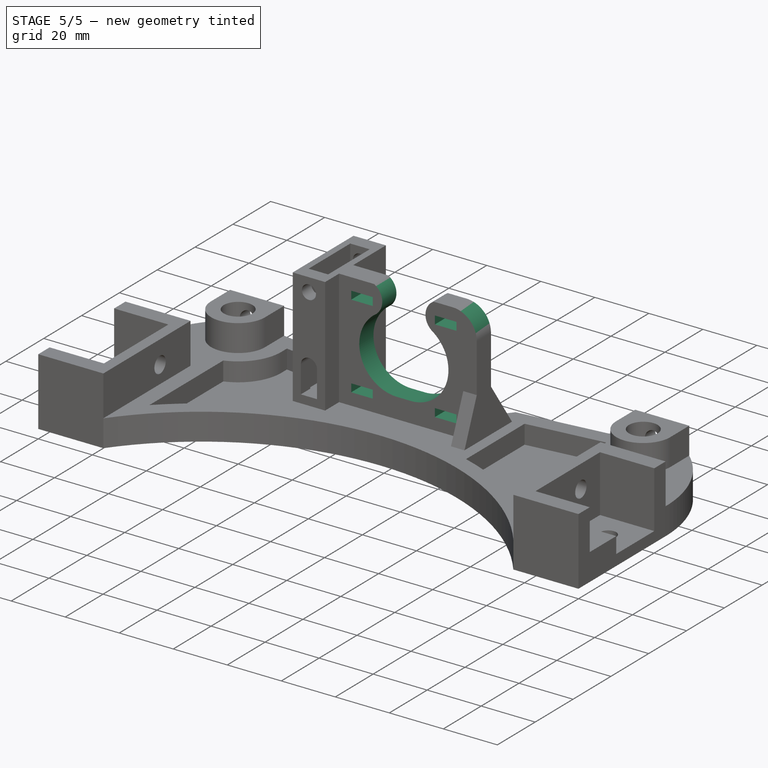
[diagram: stage 5 of 5 — iso view after this stage's code; geometry added in this stage tinted green]
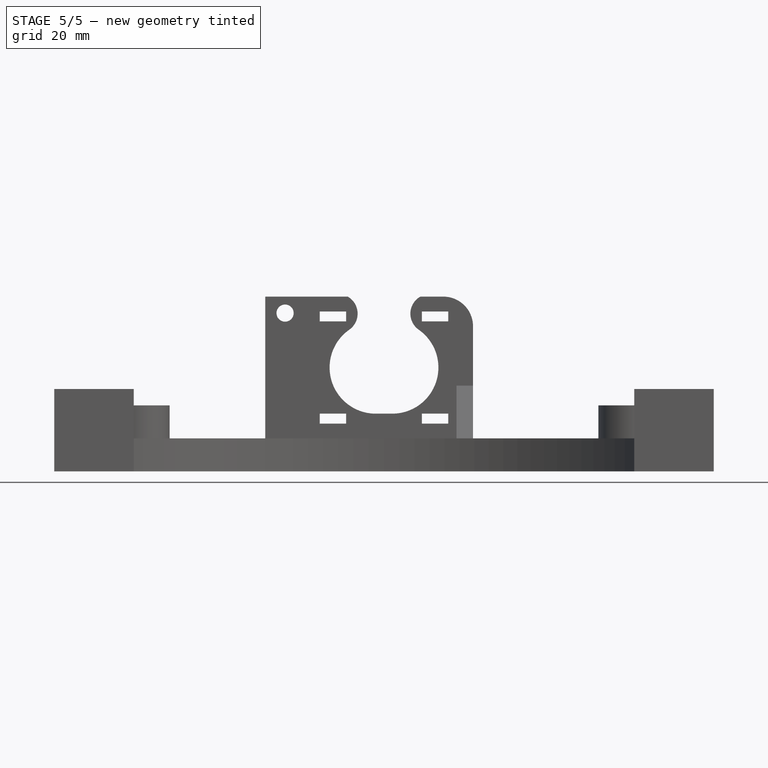
[diagram: stage 5 of 5 — front view after this stage's code; geometry added in this stage tinted green]
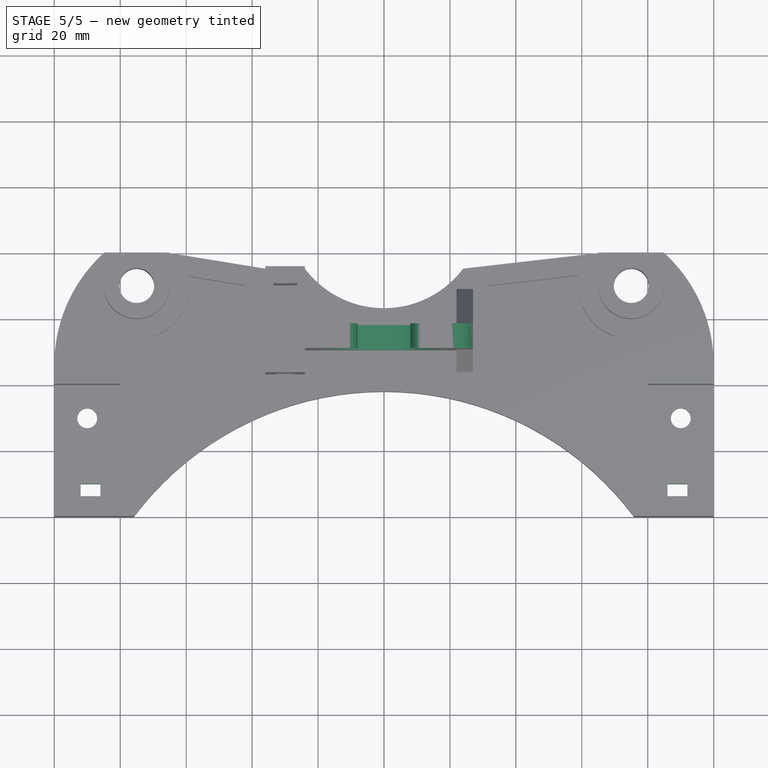
[diagram: stage 5 of 5 — top view after this stage's code; geometry added in this stage tinted green]
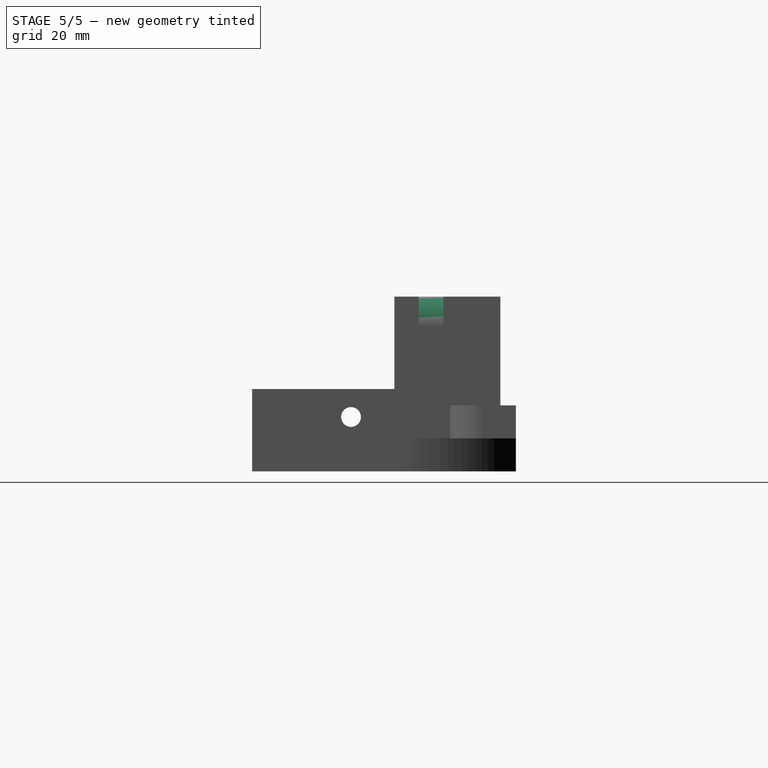
[diagram: stage 5 of 5 — right view after this stage's code; geometry added in this stage tinted green]
FEATURE [Sketcher::SketchObject] Sketch020001  label="Sketch025"
  ExternalGeometry = -> [Pocket015]
  Placement = pos=(0,50.5,0) rot=(1,0,0;1.5708rad)
  Support = -> Pocket015 [Face55]
  sketch-geometry (7):
    g0: ArcOfCircle CenterX=-2.50003 CenterY=31.5 CenterZ=0 NormalX=0 NormalY=0 NormalZ=1 Radius=14 StartAngle=2.182 EndAngle=4.71239
    g1: ArcOfCircle CenterX=-13.9461 CenterY=47.8351 CenterZ=0 NormalX=0 NormalY=0 NormalZ=1 Radius=5.9461 StartAngle=5.32359 EndAngle=7.33561
    g2: LineSegment StartX=-11 StartY=53 StartZ=0 EndX=11 EndY=53 EndZ=0
    g3: ArcOfCircle CenterX=13.9461 CenterY=47.8351 CenterZ=0 NormalX=0 NormalY=0 NormalZ=1 Radius=5.9461 StartAngle=2.08917 EndAngle=4.10119
    g4: LineSegment [constr] StartX=-13.9461 StartY=47.8351 StartZ=0 EndX=-8 EndY=47.8351 EndZ=0
    g5: LineSegment StartX=-2.5 StartY=17.5 StartZ=0 EndX=2.5 EndY=17.5 EndZ=0
    g6: ArcOfCircle CenterX=2.50003 CenterY=31.5 CenterZ=0 NormalX=0 NormalY=0 NormalZ=1 Radius=14 StartAngle=4.71239 EndAngle=7.24278
  constraints (24):
    c: Equal(g3,g1)
    c: Horizontal(g2)
    c: Coincident(g1,g2)
    c: Coincident(g3,g2)
    c: Coincident(g4,g1)
    c: Horizontal(g4)
    c: PointOnObject(g4,g1)
    c: Symmetric(g1,g2,g-2)
    c: DistanceX(g2) = 22
    c: PointOnObject(g-3,g2)
    c: Coincident(g0,g1)
    c: DistanceY(g-3,g0) = 21.5
    c: Symmetric(g3,g0,g-2)
    c: Tangent(g1,g0)
    c: DistanceX(g-1,g4) = -8
    c: Coincident(g5,g0)
    c: Horizontal(g5)
    c: Symmetric(g0,g5,g-2)
    c: DistanceX(g5) = 5
    c: Radius(g0) = 14
    c: Coincident(g6,g3)
    c: Coincident(g6,g5)
    c: Tangent(g5,g6)
    c: Equal(g0,g6)
FEATURE [PartDesign::Pocket] Pocket016
  Length = 5
  Sketch = -> Sketch020001
  Type = 1
FEATURE [Sketcher::SketchObject] Sketch024
  Placement = pos=(0,50.5,0) rot=(1,0,0;1.5708rad)
  Support = -> Pocket016 [Face55]
  sketch-geometry (5):
    g0: LineSegment StartX=-19.5 StartY=14.5 StartZ=0 EndX=-11.5 EndY=14.5 EndZ=0
    g1: LineSegment StartX=-11.5 StartY=14.5 StartZ=0 EndX=-11.5 EndY=17.5 EndZ=0
    g2: LineSegment StartX=-11.5 StartY=17.5 StartZ=0 EndX=-19.5 EndY=17.5 EndZ=0
    g3: LineSegment StartX=-19.5 StartY=17.5 StartZ=0 EndX=-19.5 EndY=14.5 EndZ=0
    g4: GeomPoint [constr] X=-15.5 Y=16 Z=0
  constraints (13):
    c: Coincident(g0,g1)
    c: Coincident(g1,g2)
    c: Coincident(g2,g3)
    c: Coincident(g3,g0)
    c: Horizontal(g0)
    c: Horizontal(g2)
    c: Vertical(g1)
    c: Vertical(g3)
    c: DistanceY(g3) = -3
    c: DistanceX(g0) = 8
    c: Symmetric(g0,g1,g4)
    c: DistanceX(g4) = -15.5
    c: DistanceY(g4) = 16
FEATURE [PartDesign::Pocket] Pocket017
  Length = 5
  Sketch = -> Sketch024
  Type = 1
FEATURE [PartDesign::LinearPattern] LinearPattern
  Direction = -> Pocket017 [Edge179]
  Length = 31
  Occurrences = 2
FEATURE [PartDesign::Mirrored] Mirrored005
  StdMirrorPlane = YZ
FEATURE [PartDesign::MultiTransform] MultiTransform
  Originals = -> [Pocket017]
  Transformations = -> [LinearPattern,Mirrored005]
FEATURE [Sketcher::SketchObject] Sketch020002
  ExternalGeometry = -> [MultiTransform]
  Placement = pos=(0,0,10) rot=(0,0,1;0rad)
  Support = -> MultiTransform [Face26]
  sketch-geometry (4):
    g0: LineSegment StartX=86 StartY=6 StartZ=0 EndX=92 EndY=6 EndZ=0
    g1: LineSegment StartX=92 StartY=6 StartZ=0 EndX=92 EndY=10 EndZ=0
    g2: LineSegment StartX=92 StartY=10 StartZ=0 EndX=86 EndY=10 EndZ=0
    g3: LineSegment StartX=86 StartY=10 StartZ=0 EndX=86 EndY=6 EndZ=0
  constraints (12):
    c: Coincident(g0,g1)
    c: Coincident(g1,g2)
    c: Coincident(g2,g3)
    c: Coincident(g3,g0)
    c: Horizontal(g0)
    c: Horizontal(g2)
    c: Vertical(g1)
    c: Vertical(g3)
    c: DistanceY(g3) = -4
    c: DistanceX(g2) = -6
    c: PointOnObject(g-3,g0)
    c: DistanceX(g1,g-3) = 8
FEATURE [PartDesign::Pocket] Pocket018
  Length = 5
  Sketch = -> Sketch020002
  Type = 1
FEATURE [PartDesign::Mirrored] Mirrored006
  Originals = -> [Pocket018]
  StdMirrorPlane = YZ
FEATURE [PartDesign::Fillet] Fillet
  Base = -> Mirrored006 [Edge335]
  Radius = 9
FEATURE [Part::Feature] Fillet001  label="PartRefine"
  shape: bbox 200 x 80 x 53 mm, 114 faces (baked)
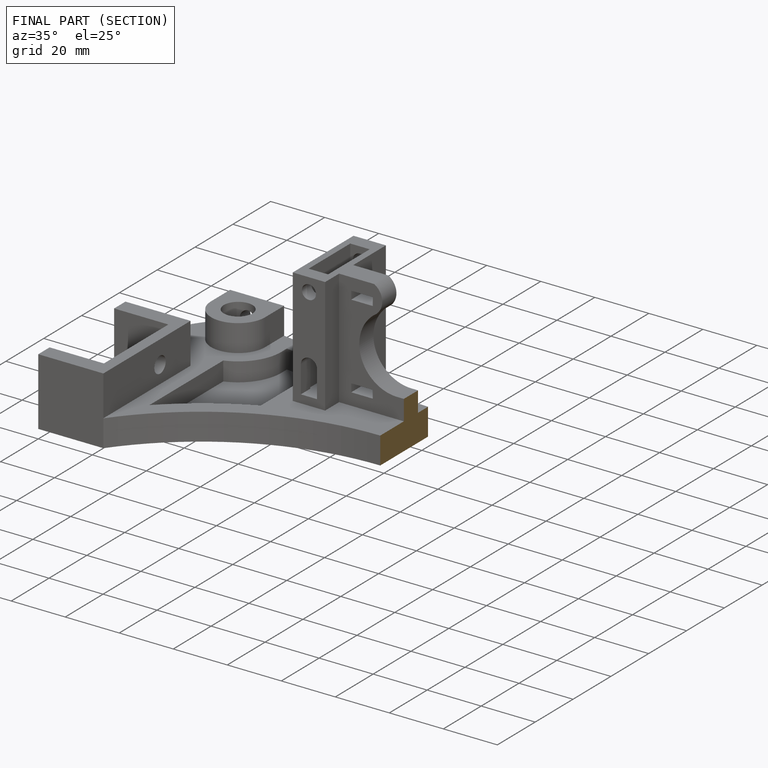
[diagram: finished part — half-section view (interior)]
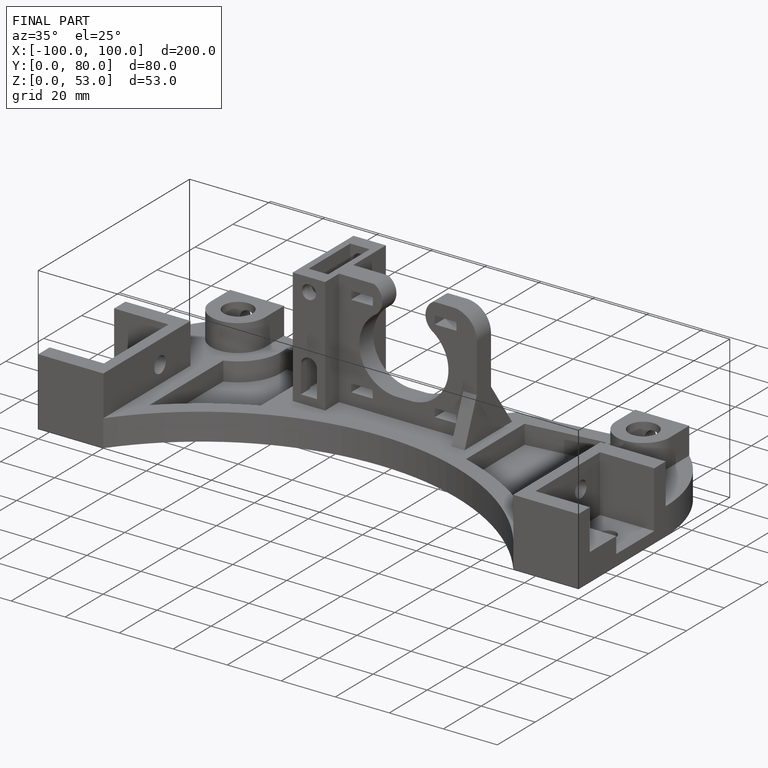
[diagram: finished part — iso view with bounding-box wireframe]
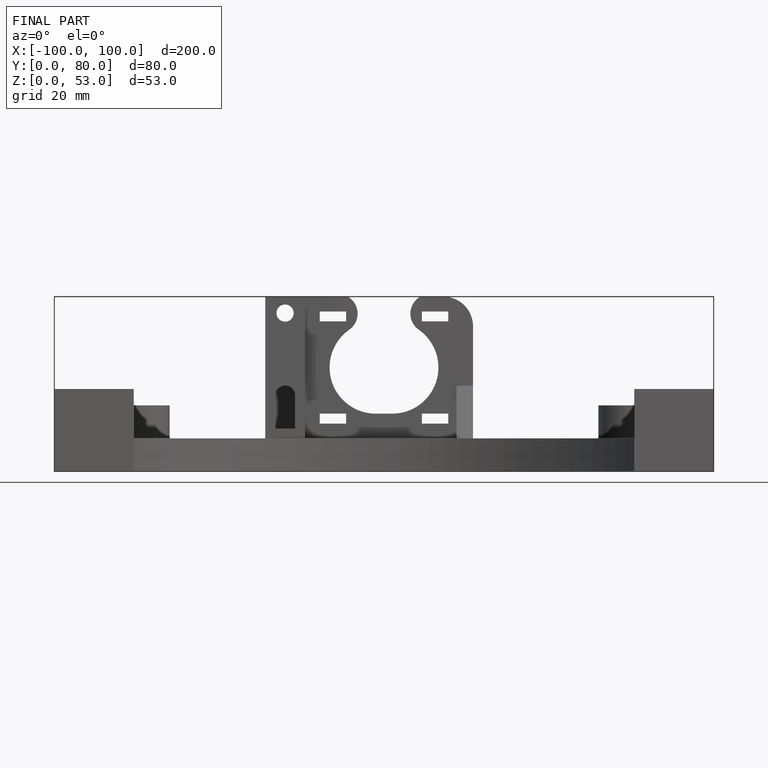
[diagram: finished part — front view with bounding-box wireframe]
